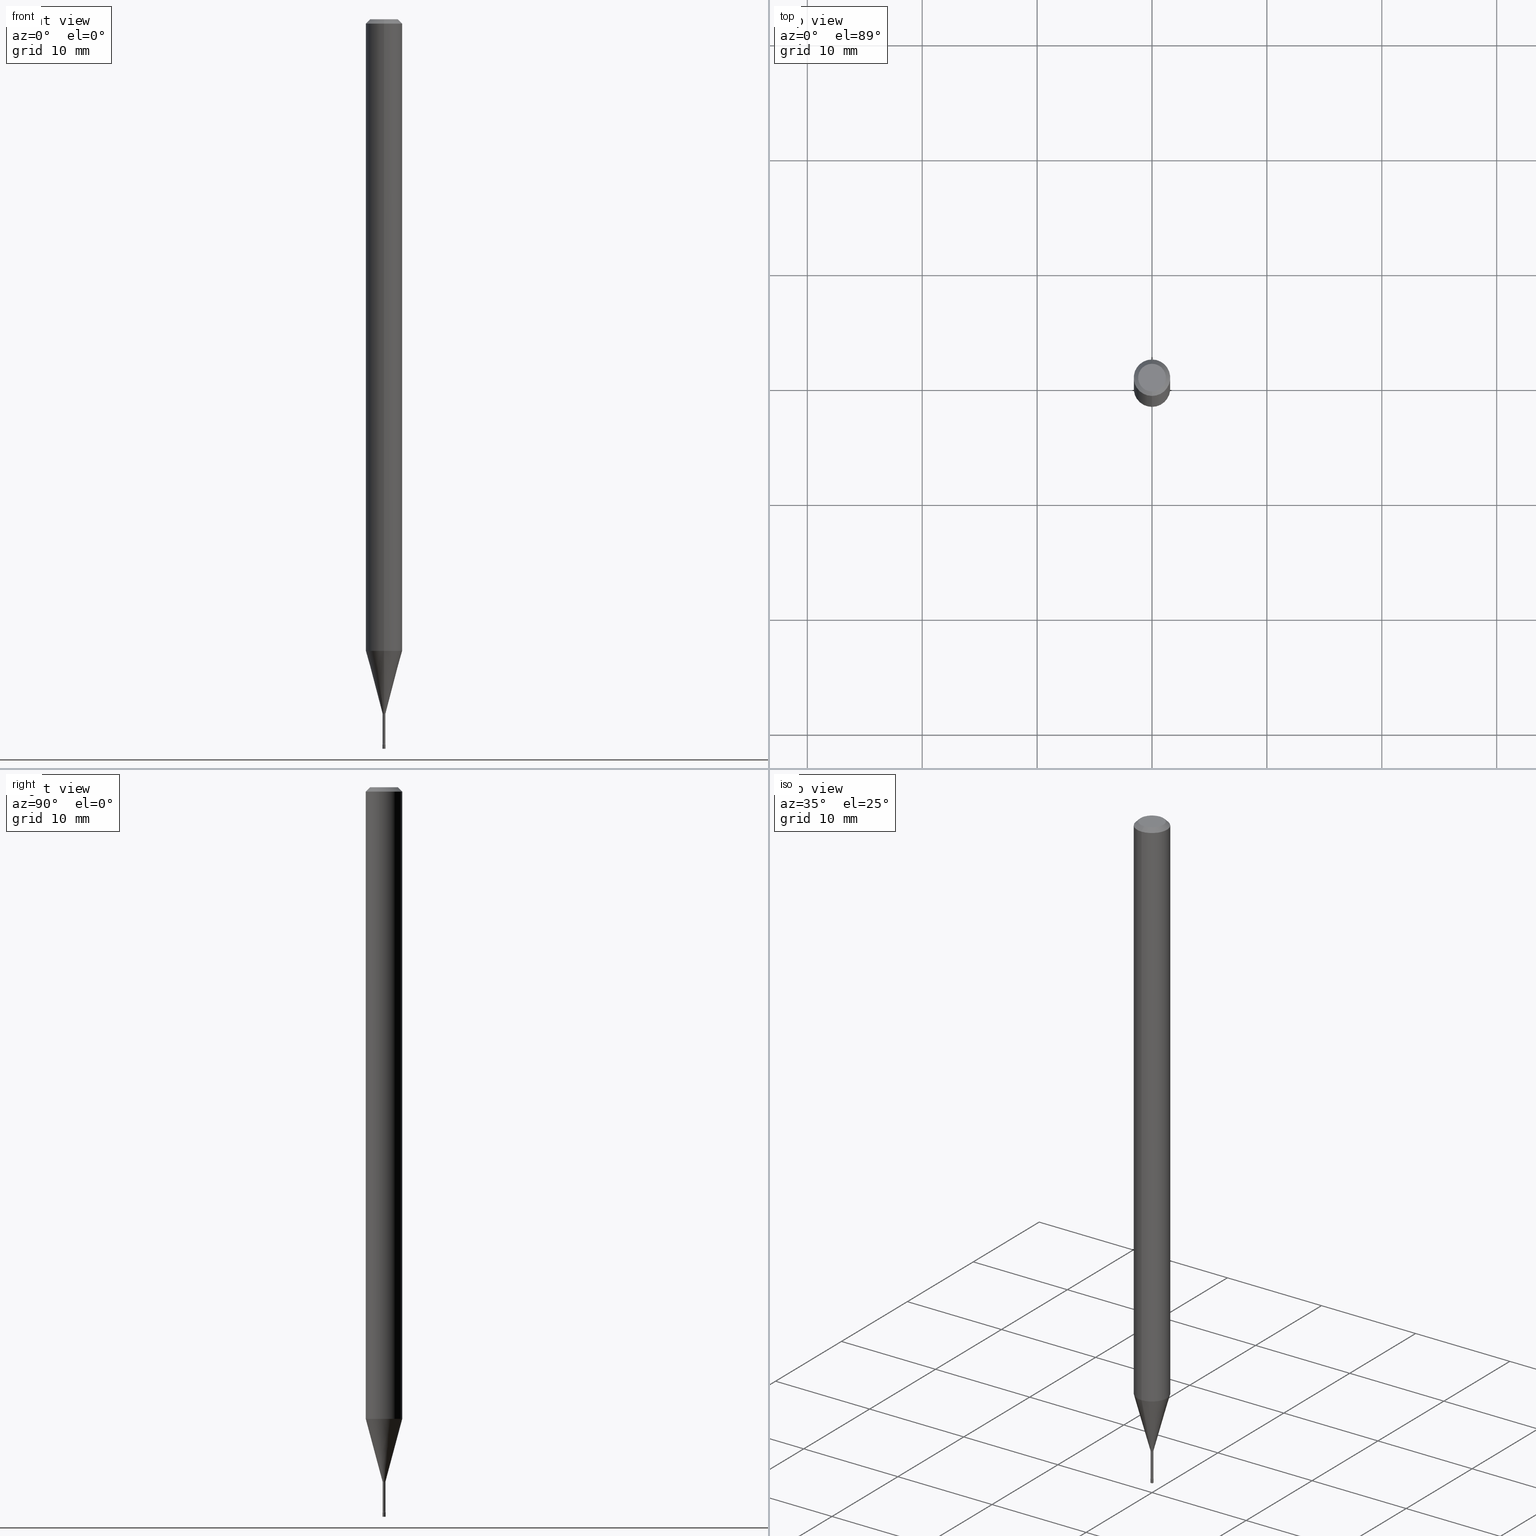
[diagram: canonical four-view strip — front | top / right | iso, engineering-drawing reading convention]
A machine part, canonical four-view strip (front | top / right | iso — engineering-drawing reading convention). The complete STEP part file that produces these views, byte-faithful:
ISO-10303-21;
HEADER;
FILE_DESCRIPTION (( 'STEP AP203' ),
    '1' );
FILE_NAME ('09595.STEP',
    '2024-03-08T23:47:24',
    ( '' ),
    ( '' ),
    'SwSTEP 2.0',
    'SolidWorks 2023',
    '' );
FILE_SCHEMA (( 'CONFIG_CONTROL_DESIGN' ));
ENDSEC;

DATA;
#1 = DIRECTION ( 'NONE',  ( -2.444331714462359119E-29, 3.493109718909404657E-15, 1.000000000000000000 ) ) ;
#2 = AXIS2_PLACEMENT_3D ( 'NONE', #79, #193, #4 ) ;
#3 = AXIS2_PLACEMENT_3D ( 'NONE', #431, #158, #123 ) ;
#4 = DIRECTION ( 'NONE',  ( -6.982962677686267499E-15, -1.000000000000000000, 0.000000000000000000 ) ) ;
#5 = CARTESIAN_POINT ( 'NONE',  ( 5.822064353521460199E-29, -8.320889032514865276E-15, -2.381974787463811527 ) ) ;
#6 = DIRECTION ( 'NONE',  ( -6.982962677686265922E-15, -1.000000000000000000, 3.483106191921935554E-15 ) ) ;
#7 = CYLINDRICAL_SURFACE ( 'NONE', #157, 0.06250000000000000000 ) ;
#8 = DIRECTION ( 'NONE',  ( -6.982962677686265922E-15, -1.000000000000000000, 0.000000000000000000 ) ) ;
#9 = VECTOR ( 'NONE', #86, 39.37007874015748143 ) ;
#10 = DESIGN_CONTEXT ( 'detailed design', #375, 'design' ) ;
#11 = EDGE_CURVE ( 'NONE', #381, #107, #188, .T. ) ;
#12 = ORIENTED_EDGE ( 'NONE', *, *, #517, .T. ) ;
#13 = ORIENTED_EDGE ( 'NONE', *, *, #239, .F. ) ;
#14 = DIRECTION ( 'NONE',  ( -6.982962677686265922E-15, -1.000000000000000000, 3.493109718909404657E-15 ) ) ;
#15 = FACE_OUTER_BOUND ( 'NONE', #104, .T. ) ;
#16 = CIRCLE ( 'NONE', #288, 0.04749999999999999362 ) ;
#17 = CC_DESIGN_SECURITY_CLASSIFICATION ( #126, ( #241 ) ) ;
#18 = VERTEX_POINT ( 'NONE', #177 ) ;
#19 = APPROVAL_STATUS ( 'not_yet_approved' ) ;
#20 = DIRECTION ( 'NONE',  ( 1.000000000000000000, -6.982962677686336130E-15, 0.000000000000000000 ) ) ;
#21 = DIMENSIONAL_EXPONENTS ( 1.000000000000000000, 0.000000000000000000, 0.000000000000000000, 0.000000000000000000, 0.000000000000000000, 0.000000000000000000, 0.000000000000000000 ) ;
#22 = ORIENTED_EDGE ( 'NONE', *, *, #255, .F. ) ;
#23 = ORIENTED_EDGE ( 'NONE', *, *, #429, .T. ) ;
#24 = DATE_TIME_ROLE ( 'classification_date' ) ;
#25 = CARTESIAN_POINT ( 'NONE',  ( -3.281992458506721643E-17, -0.004700000000008319051, -2.381974787463811527 ) ) ;
#26 = AXIS2_PLACEMENT_3D ( 'NONE', #322, #434, #80 ) ;
#27 = ORIENTED_EDGE ( 'NONE', *, *, #276, .F. ) ;
#28 = PERSON_AND_ORGANIZATION ( #435, #137 ) ;
#29 = ORIENTED_EDGE ( 'NONE', *, *, #164, .F. ) ;
#30 = VERTEX_POINT ( 'NONE', #274 ) ;
#31 = CARTESIAN_POINT ( 'NONE',  ( 0.000000000000000000, 0.000000000000000000, 0.000000000000000000 ) ) ;
#32 = APPROVAL ( #19, 'UNSPECIFIED' ) ;
#33 = AXIS2_PLACEMENT_3D ( 'NONE', #404, #256, #212 ) ;
#34 = ORIENTED_EDGE ( 'NONE', *, *, #486, .T. ) ;
#35 = EDGE_CURVE ( 'NONE', #297, #386, #118, .T. ) ;
#36 = CARTESIAN_POINT ( 'NONE',  ( 6.066709664809331474E-29, -8.670177699308193072E-15, -2.482015037688680259 ) ) ;
#37 = DIRECTION ( 'NONE',  ( -2.445468806185136597E-29, 3.491481338843145583E-15, 1.000000000000000000 ) ) ;
#38 = EDGE_CURVE ( 'NONE', #143, #151, #432, .T. ) ;
#39 = DIRECTION ( 'NONE',  ( -6.982962677686265922E-15, -1.000000000000000000, 3.493109718909404657E-15 ) ) ;
#40 = CIRCLE ( 'NONE', #349, 0.005000000000000001839 ) ;
#41 = AXIS2_PLACEMENT_3D ( 'NONE', #5, #109, #233 ) ;
#42 = FACE_OUTER_BOUND ( 'NONE', #48, .T. ) ;
#43 = APPROVAL ( #340, 'UNSPECIFIED' ) ;
#44 = ADVANCED_FACE ( 'NONE', ( #317 ), #465, .F. ) ;
#45 = AXIS2_PLACEMENT_3D ( 'NONE', #450, #367, #506 ) ;
#46 = LOCAL_TIME ( 18, 47, 24.00000000000000000, #128 ) ;
#47 = EDGE_LOOP ( 'NONE', ( #253, #346, #440, #60 ) ) ;
#48 = EDGE_LOOP ( 'NONE', ( #505, #34, #510, #69 ) ) ;
#49 = COORDINATED_UNIVERSAL_TIME_OFFSET ( 5, 0, .BEHIND. ) ;
#50 = DIRECTION ( 'NONE',  ( 2.444331714462359119E-29, -3.493109718909404263E-15, -1.000000000000000000 ) ) ;
#51 = EDGE_CURVE ( 'NONE', #412, #399, #246, .T. ) ;
#52 = EDGE_LOOP ( 'NONE', ( #343, #338 ) ) ;
#53 = PERSON_AND_ORGANIZATION_ROLE ( 'creator' ) ;
#54 = CIRCLE ( 'NONE', #66, 0.06250000000000000000 ) ;
#55 = DIRECTION ( 'NONE',  ( -2.445468806185136597E-29, 3.491481338843145583E-15, 1.000000000000000000 ) ) ;
#56 = ORIENTED_EDGE ( 'NONE', *, *, #411, .F. ) ;
#57 = CALENDAR_DATE ( 2024, 8, 3 ) ;
#58 = CARTESIAN_POINT ( 'NONE',  ( -3.491481338837061715E-17, -0.005000000000008683262, -2.484999999999999876 ) ) ;
#59 = DIRECTION ( 'NONE',  ( -2.444331714462359119E-29, 3.493109718909404263E-15, 1.000000000000000000 ) ) ;
#60 = ORIENTED_EDGE ( 'NONE', *, *, #198, .T. ) ;
#61 = APPROVAL_STATUS ( 'not_yet_approved' ) ;
#62 = EDGE_LOOP ( 'NONE', ( #227, #295, #187, #409 ) ) ;
#63 = ADVANCED_FACE ( 'NONE', ( #191 ), #169, .T. ) ;
#64 = APPLICATION_PROTOCOL_DEFINITION ( 'international standard', 'config_control_design', 1994, #375 ) ;
#65 = DIRECTION ( 'NONE',  ( 6.982962677686265922E-15, 1.000000000000000000, -3.483106191921935554E-15 ) ) ;
#66 = AXIS2_PLACEMENT_3D ( 'NONE', #439, #162, #6 ) ;
#67 = ORIENTED_EDGE ( 'NONE', *, *, #517, .F. ) ;
#68 = CARTESIAN_POINT ( 'NONE',  ( 3.666497571693545913E-31, -5.239664578364117759E-17, -0.01500000000000003067 ) ) ;
#69 = ORIENTED_EDGE ( 'NONE', *, *, #266, .F. ) ;
#70 = CARTESIAN_POINT ( 'NONE',  ( 0.004999999999999997502, -8.711245940413648329E-15, -2.484999999999999876 ) ) ;
#71 = EDGE_CURVE ( 'NONE', #107, #72, #111, .T. ) ;
#72 = VERTEX_POINT ( 'NONE', #519 ) ;
#73 = FACE_OUTER_BOUND ( 'NONE', #311, .T. ) ;
#74 = AXIS2_PLACEMENT_3D ( 'NONE', #89, #286, #243 ) ;
#75 = CARTESIAN_POINT ( 'NONE',  ( -3.281992458506486833E-17, -0.004700000000008682476, -2.482015037688680259 ) ) ;
#76 = CC_DESIGN_DATE_AND_TIME_ASSIGNMENT ( #378, #24, ( #126 ) ) ;
#77 = CARTESIAN_POINT ( 'NONE',  ( -0.004999999999999997502, -8.666990100278535771E-15, -2.500000000000000000 ) ) ;
#78 = DIRECTION ( 'NONE',  ( -6.982962677686265922E-15, -1.000000000000000000, 3.493109718909404657E-15 ) ) ;
#79 = CARTESIAN_POINT ( 'NONE',  ( 5.812846922043767073E-29, -8.306938030458705660E-15, -2.378092501787273605 ) ) ;
#80 = DIRECTION ( 'NONE',  ( -6.982962677686265922E-15, -1.000000000000000000, 0.000000000000000000 ) ) ;
#81 = CARTESIAN_POINT ( 'NONE',  ( 3.491481338849208940E-17, 0.004999999999991321283, -2.484999999999999876 ) ) ;
#82 = CIRCLE ( 'NONE', #207, 0.01500000000000000638 ) ;
#83 = CIRCLE ( 'NONE', #166, 0.005211112605663988095 ) ;
#84 = DIRECTION ( 'NONE',  ( -1.807323732225325801E-15, -0.2588190451025175753, 0.9659258262890690894 ) ) ;
#85 = ADVANCED_FACE ( 'NONE', ( #281 ), #153, .T. ) ;
#86 = DIRECTION ( 'NONE',  ( -4.851104656540964275E-15, -0.7071067811865500152, -0.7071067811865450192 ) ) ;
#87 = EDGE_CURVE ( 'NONE', #30, #399, #419, .T. ) ;
#88 = CIRCLE ( 'NONE', #380, 0.01500000000000002720 ) ;
#89 = CARTESIAN_POINT ( 'NONE',  ( 0.000000000000000000, 0.000000000000000000, 0.000000000000000000 ) ) ;
#90 = LOCAL_TIME ( 18, 47, 24.00000000000000000, #172 ) ;
#91 = FACE_OUTER_BOUND ( 'NONE', #250, .T. ) ;
#92 = ADVANCED_FACE ( 'NONE', ( #428 ), #359, .F. ) ;
#93 = CARTESIAN_POINT ( 'NONE',  ( 3.702718207188246555E-17, 0.005211112605655682239, -2.378092501787273605 ) ) ;
#94 = ORIENTED_EDGE ( 'NONE', *, *, #266, .T. ) ;
#95 = COORDINATED_UNIVERSAL_TIME_OFFSET ( 5, 0, .BEHIND. ) ;
#96 = DIRECTION ( 'NONE',  ( -2.444331714462359119E-29, 3.493109718909404657E-15, 1.000000000000000000 ) ) ;
#97 = AXIS2_PLACEMENT_3D ( 'NONE', #391, #480, #430 ) ;
#98 = APPROVAL_ROLE ( '' ) ;
#99 = CARTESIAN_POINT ( 'NONE',  ( 2.405581959609991187E-16, 0.005211112605655682239, -2.378092501787273605 ) ) ;
#100 = DIRECTION ( 'NONE',  ( 1.000000000000000000, -6.982962677686336130E-15, 0.000000000000000000 ) ) ;
#101 = EDGE_LOOP ( 'NONE', ( #384, #277, #498, #94 ) ) ;
#102 = AXIS2_PLACEMENT_3D ( 'NONE', #379, #50, #180 ) ;
#103 = CIRCLE ( 'NONE', #97, 0.06250000000000000000 ) ;
#104 = EDGE_LOOP ( 'NONE', ( #248, #516, #366, #258 ) ) ;
#105 = ORIENTED_EDGE ( 'NONE', *, *, #147, .T. ) ;
#106 = DIRECTION ( 'NONE',  ( -6.982962677686265922E-15, -1.000000000000000000, 0.000000000000000000 ) ) ;
#107 = VERTEX_POINT ( 'NONE', #396 ) ;
#108 = CIRCLE ( 'NONE', #240, 0.005000000000000001839 ) ;
#109 = DIRECTION ( 'NONE',  ( -2.444331714462359119E-29, 3.493109718909404657E-15, 1.000000000000000000 ) ) ;
#110 = AXIS2_PLACEMENT_3D ( 'NONE', #307, #383, #341 ) ;
#111 = LINE ( 'NONE', #234, #436 ) ;
#112 = MANIFOLD_SOLID_BREP ( 'Body-Move/Copy2[1]', #503 ) ;
#113 = CARTESIAN_POINT ( 'NONE',  ( 4.440892098501153712E-16, 0.06249999999999242967, -2.164287463322519756 ) ) ;
#114 = DIRECTION ( 'NONE',  ( -2.444331714462359119E-29, 3.493109718909404657E-15, 1.000000000000000000 ) ) ;
#115 = CYLINDRICAL_SURFACE ( 'NONE', #159, 0.004999999999999997502 ) ;
#116 = DIRECTION ( 'NONE',  ( -6.982962677686265922E-15, -1.000000000000000000, 0.000000000000000000 ) ) ;
#117 = CARTESIAN_POINT ( 'NONE',  ( 0.000000000000000000, 0.000000000000000000, 0.000000000000000000 ) ) ;
#118 = CIRCLE ( 'NONE', #441, 0.004999999999999997502 ) ;
#119 = ADVANCED_FACE ( 'NONE', ( #42 ), #7, .T. ) ;
#120 =( NAMED_UNIT ( * ) PLANE_ANGLE_UNIT ( ) SI_UNIT ( $, .RADIAN. ) );
#121 = DIRECTION ( 'NONE',  ( -1.000000000000000000, 6.982962677686265922E-15, -4.883557194083112340E-29 ) ) ;
#122 = ORIENTED_EDGE ( 'NONE', *, *, #167, .T. ) ;
#123 = DIRECTION ( 'NONE',  ( 1.000000000000000000, -6.982962677686266711E-15, 4.876176775795936914E-29 ) ) ;
#124 = EDGE_CURVE ( 'NONE', #18, #143, #292, .T. ) ;
#125 = AXIS2_PLACEMENT_3D ( 'NONE', #509, #55, #20 ) ;
#126 = SECURITY_CLASSIFICATION ( '', '', #267 ) ;
#127 = ORIENTED_EDGE ( 'NONE', *, *, #205, .T. ) ;
#128 = COORDINATED_UNIVERSAL_TIME_OFFSET ( 5, 0, .BEHIND. ) ;
#129 = ADVANCED_BREP_SHAPE_REPRESENTATION ( '09595', ( #112, #296, #74 ), #479 ) ;
#130 = ORIENTED_EDGE ( 'NONE', *, *, #87, .T. ) ;
#131 = DIRECTION ( 'NONE',  ( 1.839019923739595977E-15, 0.2588190451025243477, 0.9659258262890673130 ) ) ;
#132 = FACE_OUTER_BOUND ( 'NONE', #390, .T. ) ;
#133 = DIRECTION ( 'NONE',  ( 4.937700262164548042E-15, 0.7071067811865451302, -0.7071067811865499042 ) ) ;
#134 = EDGE_LOOP ( 'NONE', ( #329, #314, #130, #502 ) ) ;
#135 = PERSON_AND_ORGANIZATION ( #435, #137 ) ;
#136 = VECTOR ( 'NONE', #131, 39.37007874015748143 ) ;
#137 = ORGANIZATION ( 'UNSPECIFIED', 'UNSPECIFIED', '' ) ;
#138 = EDGE_CURVE ( 'NONE', #412, #262, #278, .T. ) ;
#139 = ORIENTED_EDGE ( 'NONE', *, *, #175, .F. ) ;
#140 = APPROVAL_ROLE ( '' ) ;
#141 = CARTESIAN_POINT ( 'NONE',  ( 6.074164310438962886E-29, -8.680377651489870003E-15, -2.484999999999999876 ) ) ;
#142 = PRODUCT_DEFINITION ( 'UNKNOWN', '', #241, #10 ) ;
#143 = VERTEX_POINT ( 'NONE', #244 ) ;
#144 = PERSON_AND_ORGANIZATION ( #435, #137 ) ;
#145 = DIRECTION ( 'NONE',  ( 7.105427357601000281E-15, 1.000000000000000000, 0.000000000000000000 ) ) ;
#146 = ORIENTED_EDGE ( 'NONE', *, *, #51, .T. ) ;
#147 = EDGE_CURVE ( 'NONE', #456, #370, #242, .T. ) ;
#148 = DIRECTION ( 'NONE',  ( -2.445468806185136597E-29, 3.491481338843145583E-15, 1.000000000000000000 ) ) ;
#149 = AXIS2_PLACEMENT_3D ( 'NONE', #482, #360, #357 ) ;
#150 = AXIS2_PLACEMENT_3D ( 'NONE', #511, #154, #427 ) ;
#151 = VERTEX_POINT ( 'NONE', #289 ) ;
#152 = ORIENTED_EDGE ( 'NONE', *, *, #429, .F. ) ;
#153 = CYLINDRICAL_SURFACE ( 'NONE', #387, 0.004700000000000006256 ) ;
#154 = DIRECTION ( 'NONE',  ( 2.438088387897960049E-29, -3.491481338843145188E-15, -1.000000000000000000 ) ) ;
#155 = PRODUCT ( '09595', '09595', '', ( #362 ) ) ;
#156 = AXIS2_PLACEMENT_3D ( 'NONE', #81, #392, #321 ) ;
#157 = AXIS2_PLACEMENT_3D ( 'NONE', #163, #200, #78 ) ;
#158 = DIRECTION ( 'NONE',  ( -2.445468806185136597E-29, 3.491481338843145583E-15, 1.000000000000000000 ) ) ;
#159 = AXIS2_PLACEMENT_3D ( 'NONE', #31, #37, #226 ) ;
#160 = DIRECTION ( 'NONE',  ( -2.444331714462359119E-29, 3.493109718909404657E-15, 1.000000000000000000 ) ) ;
#161 = CARTESIAN_POINT ( 'NONE',  ( 5.812846922043767073E-29, -8.306938030458705660E-15, -2.378092501787273605 ) ) ;
#162 = DIRECTION ( 'NONE',  ( -2.444331714462359119E-29, 3.493109718909404657E-15, 1.000000000000000000 ) ) ;
#163 = CARTESIAN_POINT ( 'NONE',  ( 0.000000000000000000, 0.000000000000000000, 0.000000000000000000 ) ) ;
#164 = EDGE_CURVE ( 'NONE', #151, #370, #54, .T. ) ;
#165 = TOROIDAL_SURFACE ( 'NONE', #453, 0.01970000000000000917, 0.01500000000000002720 ) ;
#166 = AXIS2_PLACEMENT_3D ( 'NONE', #161, #186, #273 ) ;
#167 = EDGE_CURVE ( 'NONE', #297, #208, #197, .T. ) ;
#168 = ORIENTED_EDGE ( 'NONE', *, *, #164, .T. ) ;
#169 = CONICAL_SURFACE ( 'NONE', #270, 0.005211112605663988095, 0.2617993877991496299 ) ;
#170 = ORIENTED_EDGE ( 'NONE', *, *, #175, .T. ) ;
#171 = CC_DESIGN_APPROVAL ( #43, ( #126 ) ) ;
#172 = COORDINATED_UNIVERSAL_TIME_OFFSET ( 5, 0, .BEHIND. ) ;
#173 = CARTESIAN_POINT ( 'NONE',  ( 0.004999999999999997502, -3.491481338843131630E-17, 2.438088387897967108E-31 ) ) ;
#174 = EDGE_LOOP ( 'NONE', ( #352, #139 ) ) ;
#175 = EDGE_CURVE ( 'NONE', #265, #223, #40, .T. ) ;
#176 = DIRECTION ( 'NONE',  ( 2.444331714462359119E-29, -3.493109718909404657E-15, -1.000000000000000000 ) ) ;
#177 = CARTESIAN_POINT ( 'NONE',  ( 3.840629472727447874E-16, 0.04749999999999999362, -1.947592745229183872E-16 ) ) ;
#178 = DATE_AND_TIME ( #183, #90 ) ;
#179 = ADVANCED_FACE ( 'NONE', ( #184 ), #403, .F. ) ;
#180 = DIRECTION ( 'NONE',  ( 6.982962677686265922E-15, 1.000000000000000000, -3.493109718909404263E-15 ) ) ;
#181 = CARTESIAN_POINT ( 'NONE',  ( 5.822336516047531297E-29, -8.320499280287002924E-15, -2.381974787463811527 ) ) ;
#182 = AXIS2_PLACEMENT_3D ( 'NONE', #36, #284, #515 ) ;
#183 = CALENDAR_DATE ( 2024, 8, 3 ) ;
#184 = FACE_OUTER_BOUND ( 'NONE', #52, .T. ) ;
#185 = EDGE_CURVE ( 'NONE', #421, #208, #257, .T. ) ;
#186 = DIRECTION ( 'NONE',  ( -2.444331714462359119E-29, 3.493109718909404657E-15, 1.000000000000000000 ) ) ;
#187 = ORIENTED_EDGE ( 'NONE', *, *, #71, .T. ) ;
#188 = CIRCLE ( 'NONE', #488, 0.005211112605663988095 ) ;
#189 = TOROIDAL_SURFACE ( 'NONE', #41, 0.01970000000000000917, 0.01500000000000002720 ) ;
#190 = ORIENTED_EDGE ( 'NONE', *, *, #71, .F. ) ;
#191 = FACE_OUTER_BOUND ( 'NONE', #62, .T. ) ;
#192 = ADVANCED_FACE ( 'NONE', ( #344 ), #318, .T. ) ;
#193 = DIRECTION ( 'NONE',  ( -2.444331714462359119E-29, 3.493109718909404657E-15, 1.000000000000000000 ) ) ;
#194 = APPROVAL_PERSON_ORGANIZATION ( #251, #43, #140 ) ;
#195 = DIRECTION ( 'NONE',  ( -2.444331714462359119E-29, 3.493109718909404657E-15, 1.000000000000000000 ) ) ;
#196 = CARTESIAN_POINT ( 'NONE',  ( 6.066709664809331474E-29, -8.670177699308193072E-15, -2.482015037688680259 ) ) ;
#197 = LINE ( 'NONE', #433, #247 ) ;
#198 = EDGE_CURVE ( 'NONE', #223, #265, #108, .T. ) ;
#199 = CARTESIAN_POINT ( 'NONE',  ( 4.440892098500625669E-16, 0.06250000000000000000, -2.183193574318377911E-16 ) ) ;
#200 = DIRECTION ( 'NONE',  ( -2.444331714462359119E-29, 3.493109718909404657E-15, 1.000000000000000000 ) ) ;
#201 = AXIS2_PLACEMENT_3D ( 'NONE', #302, #261, #410 ) ;
#202 = DIRECTION ( 'NONE',  ( 1.000000000000000000, -7.105427357601001070E-15, 4.926335450446441508E-29 ) ) ;
#203 = VECTOR ( 'NONE', #133, 39.37007874015748143 ) ;
#204 = ORIENTED_EDGE ( 'NONE', *, *, #35, .T. ) ;
#205 = EDGE_CURVE ( 'NONE', #262, #265, #82, .T. ) ;
#206 = CARTESIAN_POINT ( 'NONE',  ( 6.113672015462842613E-29, -8.728703347107864943E-15, -2.500000000000000000 ) ) ;
#207 = AXIS2_PLACEMENT_3D ( 'NONE', #268, #372, #145 ) ;
#208 = VERTEX_POINT ( 'NONE', #445 ) ;
#209 = CIRCLE ( 'NONE', #33, 0.06250000000000000000 ) ;
#210 = APPROVAL_DATE_TIME ( #263, #382 ) ;
#211 = ADVANCED_FACE ( 'NONE', ( #374 ), #165, .F. ) ;
#212 = DIRECTION ( 'NONE',  ( -6.982962677686265922E-15, -1.000000000000000000, 3.483106191921935554E-15 ) ) ;
#213 = ORIENTED_EDGE ( 'NONE', *, *, #185, .T. ) ;
#214 = PLANE ( 'NONE',  #222 ) ;
#215 = ORIENTED_EDGE ( 'NONE', *, *, #87, .F. ) ;
#216 = EDGE_CURVE ( 'NONE', #381, #456, #500, .T. ) ;
#217 = APPROVAL_ROLE ( '' ) ;
#218 = DIRECTION ( 'NONE',  ( -2.438088387897960049E-29, 3.491481338843145188E-15, 1.000000000000000000 ) ) ;
#219 = APPROVAL_DATE_TIME ( #178, #32 ) ;
#220 = CIRCLE ( 'NONE', #313, 0.004699999999999999317 ) ;
#221 = EDGE_CURVE ( 'NONE', #107, #399, #425, .T. ) ;
#222 = AXIS2_PLACEMENT_3D ( 'NONE', #299, #218, #461 ) ;
#223 = VERTEX_POINT ( 'NONE', #58 ) ;
#224 = FACE_OUTER_BOUND ( 'NONE', #231, .T. ) ;
#225 = ORIENTED_EDGE ( 'NONE', *, *, #416, .F. ) ;
#226 = DIRECTION ( 'NONE',  ( 1.000000000000000000, -6.982962677686266711E-15, 4.876176775795936914E-29 ) ) ;
#227 = ORIENTED_EDGE ( 'NONE', *, *, #216, .F. ) ;
#228 = DIRECTION ( 'NONE',  ( 1.000000000000000000, -6.982962677686336130E-15, 0.000000000000000000 ) ) ;
#229 = AXIS2_PLACEMENT_3D ( 'NONE', #484, #324, #116 ) ;
#230 = TOROIDAL_SURFACE ( 'NONE', #182, 0.01970000000000001958, 0.01500000000000000638 ) ;
#231 = EDGE_LOOP ( 'NONE', ( #336, #105, #29, #365 ) ) ;
#232 = EDGE_CURVE ( 'NONE', #381, #30, #88, .T. ) ;
#233 = DIRECTION ( 'NONE',  ( -6.982962677686265922E-15, -1.000000000000000000, 3.493109718909404657E-15 ) ) ;
#234 = CARTESIAN_POINT ( 'NONE',  ( -3.638900483451393504E-17, -0.005211112605672294819, -2.378092501787273605 ) ) ;
#235 = CC_DESIGN_PERSON_AND_ORGANIZATION_ASSIGNMENT ( #135, #305, ( #155 ) ) ;
#236 = LENGTH_MEASURE_WITH_UNIT ( LENGTH_MEASURE( 0.02539999999999999897 ), #518 );
#237 = CARTESIAN_POINT ( 'NONE',  ( 7.048612517077012088E-46, -1.007292780376324929E-31, -2.883656287472169979E-17 ) ) ;
#238 = CARTESIAN_POINT ( 'NONE',  ( 6.076989983370064174E-29, -8.676331127025216680E-15, -2.484999999999999876 ) ) ;
#239 = EDGE_CURVE ( 'NONE', #412, #223, #442, .T. ) ;
#240 = AXIS2_PLACEMENT_3D ( 'NONE', #141, #309, #460 ) ;
#241 = PRODUCT_DEFINITION_FORMATION_WITH_SPECIFIED_SOURCE ( 'ANY', '', #155, .NOT_KNOWN. ) ;
#242 = LINE ( 'NONE', #199, #493 ) ;
#243 = DIRECTION ( 'NONE',  ( 1.000000000000000000, 0.000000000000000000, 0.000000000000000000 ) ) ;
#244 = CARTESIAN_POINT ( 'NONE',  ( -3.773273898774340269E-16, -0.04749999999999999362, 1.370861487734750493E-16 ) ) ;
#245 = CC_DESIGN_PERSON_AND_ORGANIZATION_ASSIGNMENT ( #28, #53, ( #142 ) ) ;
#246 = LINE ( 'NONE', #477, #363 ) ;
#247 = VECTOR ( 'NONE', #358, 39.37007874015748143 ) ;
#248 = ORIENTED_EDGE ( 'NONE', *, *, #232, .F. ) ;
#249 = LINE ( 'NONE', #173, #279 ) ;
#250 = EDGE_LOOP ( 'NONE', ( #272, #204, #497, #67 ) ) ;
#251 = PERSON_AND_ORGANIZATION ( #435, #137 ) ;
#252 = CARTESIAN_POINT ( 'NONE',  ( 5.822064353521460199E-29, -8.320889032514865276E-15, -2.381974787463811527 ) ) ;
#253 = ORIENTED_EDGE ( 'NONE', *, *, #205, .F. ) ;
#254 = FACE_OUTER_BOUND ( 'NONE', #376, .T. ) ;
#255 = EDGE_CURVE ( 'NONE', #386, #421, #249, .T. ) ;
#256 = DIRECTION ( 'NONE',  ( -2.444331714462359119E-29, 3.493109718909404657E-15, 1.000000000000000000 ) ) ;
#257 = CIRCLE ( 'NONE', #125, 0.004999999999999997502 ) ;
#258 = ORIENTED_EDGE ( 'NONE', *, *, #411, .T. ) ;
#259 = AXIS2_PLACEMENT_3D ( 'NONE', #206, #368, #282 ) ;
#260 = CALENDAR_DATE ( 2024, 8, 3 ) ;
#261 = DIRECTION ( 'NONE',  ( -1.000000000000000000, 6.982962677686265922E-15, -4.883557194083112340E-29 ) ) ;
#262 = VERTEX_POINT ( 'NONE', #331 ) ;
#263 = DATE_AND_TIME ( #260, #495 ) ;
#264 = CARTESIAN_POINT ( 'NONE',  ( 4.440892098501159629E-16, 0.06249999999999995837, -0.01500000000000024751 ) ) ;
#265 = VERTEX_POINT ( 'NONE', #496 ) ;
#266 = EDGE_CURVE ( 'NONE', #370, #151, #209, .T. ) ;
#267 = SECURITY_CLASSIFICATION_LEVEL ( 'unclassified' ) ;
#268 = CARTESIAN_POINT ( 'NONE',  ( 1.399769189448004948E-16, 0.01969999999999134943, -2.482015037688680259 ) ) ;
#269 = EDGE_LOOP ( 'NONE', ( #152, #508, #146, #215 ) ) ;
#270 = AXIS2_PLACEMENT_3D ( 'NONE', #397, #323, #353 ) ;
#271 = CIRCLE ( 'NONE', #369, 0.06250000000000000000 ) ;
#272 = ORIENTED_EDGE ( 'NONE', *, *, #167, .F. ) ;
#273 = DIRECTION ( 'NONE',  ( -6.982962677686267499E-15, -1.000000000000000000, 0.000000000000000000 ) ) ;
#274 = CARTESIAN_POINT ( 'NONE',  ( 3.339550858078540920E-17, 0.004699999999991678716, -2.381974787463811527 ) ) ;
#275 = CARTESIAN_POINT ( 'NONE',  ( 3.339550858072474703E-17, 0.004700000000000006256, -1.641761567887422463E-17 ) ) ;
#276 = EDGE_CURVE ( 'NONE', #18, #370, #335, .T. ) ;
#277 = ORIENTED_EDGE ( 'NONE', *, *, #124, .F. ) ;
#278 = CIRCLE ( 'NONE', #229, 0.004700000000000012328 ) ;
#279 = VECTOR ( 'NONE', #401, 39.37007874015748143 ) ;
#280 = EDGE_CURVE ( 'NONE', #72, #151, #303, .T. ) ;
#281 = FACE_OUTER_BOUND ( 'NONE', #269, .T. ) ;
#282 = DIRECTION ( 'NONE',  ( 1.000000000000000000, -6.982962677686336130E-15, 0.000000000000000000 ) ) ;
#283 = EDGE_CURVE ( 'NONE', #386, #297, #426, .T. ) ;
#284 = DIRECTION ( 'NONE',  ( -2.444331714462359119E-29, 3.493109718909404657E-15, 1.000000000000000000 ) ) ;
#285 = CARTESIAN_POINT ( 'NONE',  ( 5.822336516047531297E-29, -8.320499280287002924E-15, -2.381974787463811527 ) ) ;
#286 = DIRECTION ( 'NONE',  ( 0.000000000000000000, 0.000000000000000000, 1.000000000000000000 ) ) ;
#287 = AXIS2_PLACEMENT_3D ( 'NONE', #285, #1, #8 ) ;
#288 = AXIS2_PLACEMENT_3D ( 'NONE', #237, #356, #494 ) ;
#289 = CARTESIAN_POINT ( 'NONE',  ( -4.364351673553912750E-16, -0.06250000000000005551, -0.01499999999999981209 ) ) ;
#290 = DIRECTION ( 'NONE',  ( -6.982962677686265133E-15, -1.000000000000000000, 3.493109718909404657E-15 ) ) ;
#291 = ADVANCED_FACE ( 'NONE', ( #15 ), #189, .F. ) ;
#292 = CIRCLE ( 'NONE', #149, 0.04749999999999999362 ) ;
#293 = AXIS2_PLACEMENT_3D ( 'NONE', #481, #195, #330 ) ;
#294 = ADVANCED_FACE ( 'NONE', ( #91 ), #393, .T. ) ;
#295 = ORIENTED_EDGE ( 'NONE', *, *, #11, .T. ) ;
#296 = MANIFOLD_SOLID_BREP ( 'Body-Move/Copy2[2]', #312 ) ;
#297 = VERTEX_POINT ( 'NONE', #77 ) ;
#298 = UNCERTAINTY_MEASURE_WITH_UNIT (LENGTH_MEASURE( 1.000000000000000082E-05 ), #473, 'distance_accuracy_value', 'NONE');
#299 = CARTESIAN_POINT ( 'NONE',  ( 6.076989983370064174E-29, -8.676331127025216680E-15, -2.484999999999999876 ) ) ;
#300 = SHAPE_DEFINITION_REPRESENTATION ( #476, #129 ) ;
#301 = PERSON_AND_ORGANIZATION ( #435, #137 ) ;
#302 = CARTESIAN_POINT ( 'NONE',  ( -1.375643647503612824E-16, -0.01970000000000832890, -2.381974787463811527 ) ) ;
#303 = LINE ( 'NONE', #455, #489 ) ;
#304 = ORIENTED_EDGE ( 'NONE', *, *, #283, .F. ) ;
#305 = PERSON_AND_ORGANIZATION_ROLE ( 'design_owner' ) ;
#306 = CARTESIAN_POINT ( 'NONE',  ( 6.074164310438962886E-29, -8.680377651489870003E-15, -2.484999999999999876 ) ) ;
#307 = CARTESIAN_POINT ( 'NONE',  ( 0.000000000000000000, 0.000000000000000000, 0.000000000000000000 ) ) ;
#308 = CARTESIAN_POINT ( 'NONE',  ( 6.113672015462842613E-29, -8.728703347107864943E-15, -2.500000000000000000 ) ) ;
#309 = DIRECTION ( 'NONE',  ( -2.444331714462359119E-29, 3.493109718909404657E-15, 1.000000000000000000 ) ) ;
#310 = PERSON_AND_ORGANIZATION_ROLE ( 'classification_officer' ) ;
#311 = EDGE_LOOP ( 'NONE', ( #448, #122, #424, #22 ) ) ;
#312 = CLOSED_SHELL ( 'NONE', ( #211, #325, #491, #361, #377, #457, #63, #119, #192, #179, #92, #44, #85, #291 ) ) ;
#313 = AXIS2_PLACEMENT_3D ( 'NONE', #181, #507, #106 ) ;
#314 = ORIENTED_EDGE ( 'NONE', *, *, #232, .T. ) ;
#315 = FACE_OUTER_BOUND ( 'NONE', #316, .T. ) ;
#316 = EDGE_LOOP ( 'NONE', ( #347, #332, #225, #190 ) ) ;
#317 = FACE_OUTER_BOUND ( 'NONE', #47, .T. ) ;
#318 = CONICAL_SURFACE ( 'NONE', #45, 0.06250000000000000000, 0.7853981633974483900 ) ;
#319 = CONICAL_SURFACE ( 'NONE', #398, 0.06250000000000000000, 0.7853981633974483900 ) ;
#320 = CYLINDRICAL_SURFACE ( 'NONE', #293, 0.004700000000000006256 ) ;
#321 = DIRECTION ( 'NONE',  ( -6.982962677686265922E-15, -1.000000000000000000, 3.493109718909404263E-15 ) ) ;
#322 = CARTESIAN_POINT ( 'NONE',  ( 6.066868072394927886E-29, -8.669950850629620107E-15, -2.482015037688680259 ) ) ;
#323 = DIRECTION ( 'NONE',  ( -2.444331714462359119E-29, 3.493109718909404657E-15, 1.000000000000000000 ) ) ;
#324 = DIRECTION ( 'NONE',  ( -2.444331714462359119E-29, 3.493109718909404657E-15, 1.000000000000000000 ) ) ;
#325 = ADVANCED_FACE ( 'NONE', ( #400 ), #320, .T. ) ;
#326 = ORIENTED_EDGE ( 'NONE', *, *, #138, .T. ) ;
#327 = EDGE_CURVE ( 'NONE', #143, #18, #16, .T. ) ;
#328 = DIRECTION ( 'NONE',  ( -6.982962677686265133E-15, -1.000000000000000000, 0.000000000000000000 ) ) ;
#329 = ORIENTED_EDGE ( 'NONE', *, *, #11, .F. ) ;
#330 = DIRECTION ( 'NONE',  ( -6.982962677686265922E-15, -1.000000000000000000, 3.493109718909404657E-15 ) ) ;
#331 = CARTESIAN_POINT ( 'NONE',  ( 3.446132268442561466E-17, 0.004699999999991343047, -2.482015037688680259 ) ) ;
#332 = ORIENTED_EDGE ( 'NONE', *, *, #216, .T. ) ;
#333 = ORIENTED_EDGE ( 'NONE', *, *, #327, .F. ) ;
#334 = CALENDAR_DATE ( 2024, 8, 3 ) ;
#335 = LINE ( 'NONE', #501, #203 ) ;
#336 = ORIENTED_EDGE ( 'NONE', *, *, #416, .T. ) ;
#337 = CYLINDRICAL_SURFACE ( 'NONE', #110, 0.06250000000000000000 ) ;
#338 = ORIENTED_EDGE ( 'NONE', *, *, #327, .T. ) ;
#339 = APPROVAL_PERSON_ORGANIZATION ( #449, #32, #217 ) ;
#340 = APPROVAL_STATUS ( 'not_yet_approved' ) ;
#341 = DIRECTION ( 'NONE',  ( -6.982962677686265922E-15, -1.000000000000000000, 3.493109718909404657E-15 ) ) ;
#342 = EDGE_CURVE ( 'NONE', #262, #412, #350, .T. ) ;
#343 = ORIENTED_EDGE ( 'NONE', *, *, #124, .T. ) ;
#344 = FACE_OUTER_BOUND ( 'NONE', #101, .T. ) ;
#345 = APPLICATION_CONTEXT ( 'configuration controlled 3d designs of mechanical parts and assemblies' ) ;
#346 = ORIENTED_EDGE ( 'NONE', *, *, #138, .F. ) ;
#347 = ORIENTED_EDGE ( 'NONE', *, *, #463, .T. ) ;
#348 = ADVANCED_FACE ( 'NONE', ( #132 ), #214, .T. ) ;
#349 = AXIS2_PLACEMENT_3D ( 'NONE', #306, #406, #418 ) ;
#350 = CIRCLE ( 'NONE', #26, 0.004700000000000012328 ) ;
#351 = FACE_OUTER_BOUND ( 'NONE', #492, .T. ) ;
#352 = ORIENTED_EDGE ( 'NONE', *, *, #198, .F. ) ;
#353 = DIRECTION ( 'NONE',  ( -6.982962677686267499E-15, -1.000000000000000000, 0.000000000000000000 ) ) ;
#354 = FACE_OUTER_BOUND ( 'NONE', #467, .T. ) ;
#355 = AXIS2_PLACEMENT_3D ( 'NONE', #238, #148, #228 ) ;
#356 = DIRECTION ( 'NONE',  ( -2.444331714462359119E-29, 3.493109718909404657E-15, 1.000000000000000000 ) ) ;
#357 = DIRECTION ( 'NONE',  ( -6.982962677686266711E-15, -1.000000000000000000, 3.493109718909405052E-15 ) ) ;
#358 = DIRECTION ( 'NONE',  ( -2.445468806185136877E-29, 3.491481338843145188E-15, 1.000000000000000000 ) ) ;
#359 = PLANE ( 'NONE',  #156 ) ;
#360 = DIRECTION ( 'NONE',  ( -2.444331714462359119E-29, 3.493109718909404657E-15, 1.000000000000000000 ) ) ;
#361 = ADVANCED_FACE ( 'NONE', ( #254 ), #319, .T. ) ;
#362 = MECHANICAL_CONTEXT ( 'NONE', #345, 'mechanical' ) ;
#363 = VECTOR ( 'NONE', #394, 39.37007874015748143 ) ;
#364 = DIRECTION ( 'NONE',  ( 7.105427357601001859E-15, 1.000000000000000000, 0.000000000000000000 ) ) ;
#365 = ORIENTED_EDGE ( 'NONE', *, *, #280, .F. ) ;
#366 = ORIENTED_EDGE ( 'NONE', *, *, #221, .T. ) ;
#367 = DIRECTION ( 'NONE',  ( 2.444331714462359119E-29, -3.493109718909404657E-15, -1.000000000000000000 ) ) ;
#368 = DIRECTION ( 'NONE',  ( -2.445468806185136597E-29, 3.491481338843145583E-15, 1.000000000000000000 ) ) ;
#369 = AXIS2_PLACEMENT_3D ( 'NONE', #423, #470, #385 ) ;
#370 = VERTEX_POINT ( 'NONE', #264 ) ;
#371 = DATE_TIME_ROLE ( 'creation_date' ) ;
#372 = DIRECTION ( 'NONE',  ( 1.000000000000000000, -7.105427357601001070E-15, 4.926335450446441508E-29 ) ) ;
#373 = PERSON_AND_ORGANIZATION ( #435, #137 ) ;
#374 = FACE_OUTER_BOUND ( 'NONE', #134, .T. ) ;
#375 = APPLICATION_CONTEXT ( 'configuration controlled 3d designs of mechanical parts and assemblies' ) ;
#376 = EDGE_LOOP ( 'NONE', ( #333, #444, #168, #27 ) ) ;
#377 = ADVANCED_FACE ( 'NONE', ( #224 ), #337, .T. ) ;
#378 = DATE_AND_TIME ( #57, #420 ) ;
#379 = CARTESIAN_POINT ( 'NONE',  ( 3.316907271900976096E-16, 0.04749999999999999362, -1.803409930855575528E-16 ) ) ;
#380 = AXIS2_PLACEMENT_3D ( 'NONE', #438, #202, #364 ) ;
#381 = VERTEX_POINT ( 'NONE', #99 ) ;
#382 = APPROVAL ( #61, 'UNSPECIFIED' ) ;
#383 = DIRECTION ( 'NONE',  ( -2.444331714462359119E-29, 3.493109718909404657E-15, 1.000000000000000000 ) ) ;
#384 = ORIENTED_EDGE ( 'NONE', *, *, #38, .F. ) ;
#385 = DIRECTION ( 'NONE',  ( -6.982962677686265922E-15, -1.000000000000000000, 4.370956789862821150E-15 ) ) ;
#386 = VERTEX_POINT ( 'NONE', #414 ) ;
#387 = AXIS2_PLACEMENT_3D ( 'NONE', #117, #114, #39 ) ;
#388 = CONICAL_SURFACE ( 'NONE', #2, 0.005211112605663988095, 0.2617993877991496299 ) ;
#389 = LINE ( 'NONE', #275, #454 ) ;
#390 = EDGE_LOOP ( 'NONE', ( #213, #12 ) ) ;
#391 = CARTESIAN_POINT ( 'NONE',  ( 5.290236485812523479E-29, -7.560093572645674107E-15, -2.164287463322519312 ) ) ;
#392 = DIRECTION ( 'NONE',  ( -2.444331714462359119E-29, 3.493109718909404263E-15, 1.000000000000000000 ) ) ;
#393 = CYLINDRICAL_SURFACE ( 'NONE', #3, 0.004999999999999997502 ) ;
#394 = DIRECTION ( 'NONE',  ( -2.444331714462359119E-29, 3.493109718909404263E-15, 1.000000000000000000 ) ) ;
#395 = LOCAL_TIME ( 18, 47, 24.00000000000000000, #49 ) ;
#396 = CARTESIAN_POINT ( 'NONE',  ( -3.638900483451393504E-17, -0.005211112605672294819, -2.378092501787273605 ) ) ;
#397 = CARTESIAN_POINT ( 'NONE',  ( 5.812846922043767073E-29, -8.306938030458705660E-15, -2.378092501787273605 ) ) ;
#398 = AXIS2_PLACEMENT_3D ( 'NONE', #68, #176, #65 ) ;
#399 = VERTEX_POINT ( 'NONE', #25 ) ;
#400 = FACE_OUTER_BOUND ( 'NONE', #446, .T. ) ;
#401 = DIRECTION ( 'NONE',  ( -2.445468806185136877E-29, 3.491481338843145188E-15, 1.000000000000000000 ) ) ;
#402 = PERSON_AND_ORGANIZATION_ROLE ( 'creator' ) ;
#403 = PLANE ( 'NONE',  #102 ) ;
#404 = CARTESIAN_POINT ( 'NONE',  ( 3.666497571693545913E-31, -5.239664578364117759E-17, -0.01500000000000003067 ) ) ;
#405 = COORDINATED_UNIVERSAL_TIME_OFFSET ( 5, 0, .BEHIND. ) ;
#406 = DIRECTION ( 'NONE',  ( -2.444331714462359119E-29, 3.493109718909404657E-15, 1.000000000000000000 ) ) ;
#407 = CC_DESIGN_PERSON_AND_ORGANIZATION_ASSIGNMENT ( #301, #310, ( #126 ) ) ;
#408 = CIRCLE ( 'NONE', #355, 0.004999999999999997502 ) ;
#409 = ORIENTED_EDGE ( 'NONE', *, *, #486, .F. ) ;
#410 = DIRECTION ( 'NONE',  ( -6.982962677686267499E-15, -1.000000000000000000, 0.000000000000000000 ) ) ;
#411 = EDGE_CURVE ( 'NONE', #399, #30, #220, .T. ) ;
#412 = VERTEX_POINT ( 'NONE', #75 ) ;
#413 = PERSON_AND_ORGANIZATION_ROLE ( 'design_supplier' ) ;
#414 = CARTESIAN_POINT ( 'NONE',  ( 0.004999999999999997502, -8.763618160496296592E-15, -2.500000000000000000 ) ) ;
#415 = CARTESIAN_POINT ( 'NONE',  ( 5.812846922043767073E-29, -8.306938030458705660E-15, -2.378092501787273605 ) ) ;
#416 = EDGE_CURVE ( 'NONE', #72, #456, #103, .T. ) ;
#417 = DATE_AND_TIME ( #459, #395 ) ;
#418 = DIRECTION ( 'NONE',  ( -6.982962677686266711E-15, -1.000000000000000000, 0.000000000000000000 ) ) ;
#419 = CIRCLE ( 'NONE', #287, 0.004699999999999999317 ) ;
#420 = LOCAL_TIME ( 18, 47, 24.00000000000000000, #95 ) ;
#421 = VERTEX_POINT ( 'NONE', #70 ) ;
#422 = ORIENTED_EDGE ( 'NONE', *, *, #342, .F. ) ;
#423 = CARTESIAN_POINT ( 'NONE',  ( 5.290236485812523479E-29, -7.560093572645674107E-15, -2.164287463322519312 ) ) ;
#424 = ORIENTED_EDGE ( 'NONE', *, *, #185, .F. ) ;
#425 = CIRCLE ( 'NONE', #201, 0.01500000000000002720 ) ;
#426 = CIRCLE ( 'NONE', #259, 0.004999999999999997502 ) ;
#427 = DIRECTION ( 'NONE',  ( -1.000000000000000000, 6.982962677686265922E-15, -4.876176775795935793E-29 ) ) ;
#428 = FACE_OUTER_BOUND ( 'NONE', #174, .T. ) ;
#429 = EDGE_CURVE ( 'NONE', #262, #30, #389, .T. ) ;
#430 = DIRECTION ( 'NONE',  ( -6.982962677686265922E-15, -1.000000000000000000, 4.370956789862821150E-15 ) ) ;
#431 = CARTESIAN_POINT ( 'NONE',  ( 0.000000000000000000, 0.000000000000000000, 0.000000000000000000 ) ) ;
#432 = LINE ( 'NONE', #437, #9 ) ;
#433 = CARTESIAN_POINT ( 'NONE',  ( -0.004999999999999997502, 3.552713678800499154E-17, -2.459467545127451822E-31 ) ) ;
#434 = DIRECTION ( 'NONE',  ( -2.444331714462359119E-29, 3.493109718909404657E-15, 1.000000000000000000 ) ) ;
#435 = PERSON ( 'UNSPECIFIED', 'UNSPECIFIED', 'UNSPECIFIED', ('UNSPECIFIED'), ('UNSPECIFIED'), ('UNSPECIFIED') ) ;
#436 = VECTOR ( 'NONE', #84, 39.37007874015748854 ) ;
#437 = CARTESIAN_POINT ( 'NONE',  ( -4.287811248607203282E-16, -0.06250000000000005551, -0.01499999999999981209 ) ) ;
#438 = CARTESIAN_POINT ( 'NONE',  ( 1.399769189447980049E-16, 0.01969999999999168944, -2.381974787463811527 ) ) ;
#439 = CARTESIAN_POINT ( 'NONE',  ( 3.666497571693545913E-31, -5.239664578364117759E-17, -0.01500000000000003067 ) ) ;
#440 = ORIENTED_EDGE ( 'NONE', *, *, #239, .T. ) ;
#441 = AXIS2_PLACEMENT_3D ( 'NONE', #308, #458, #100 ) ;
#442 = CIRCLE ( 'NONE', #513, 0.01500000000000000638 ) ;
#443 = CC_DESIGN_APPROVAL ( #32, ( #241 ) ) ;
#444 = ORIENTED_EDGE ( 'NONE', *, *, #38, .T. ) ;
#445 = CARTESIAN_POINT ( 'NONE',  ( -0.004999999999999997502, -8.666990100278535771E-15, -2.484999999999999876 ) ) ;
#446 = EDGE_LOOP ( 'NONE', ( #326, #23, #56, #462 ) ) ;
#447 = PERSON_AND_ORGANIZATION ( #435, #137 ) ;
#448 = ORIENTED_EDGE ( 'NONE', *, *, #283, .T. ) ;
#449 = PERSON_AND_ORGANIZATION ( #435, #137 ) ;
#450 = CARTESIAN_POINT ( 'NONE',  ( 3.666497571693545913E-31, -5.239664578364117759E-17, -0.01500000000000003067 ) ) ;
#451 = CC_DESIGN_PERSON_AND_ORGANIZATION_ASSIGNMENT ( #373, #402, ( #241 ) ) ;
#452 = ADVANCED_FACE ( 'NONE', ( #354 ), #468, .T. ) ;
#453 = AXIS2_PLACEMENT_3D ( 'NONE', #252, #96, #14 ) ;
#454 = VECTOR ( 'NONE', #483, 39.37007874015748143 ) ;
#455 = CARTESIAN_POINT ( 'NONE',  ( -4.364351673553916201E-16, -0.06250000000000000000, 2.183193574318377911E-16 ) ) ;
#456 = VERTEX_POINT ( 'NONE', #113 ) ;
#457 = ADVANCED_FACE ( 'NONE', ( #315 ), #388, .T. ) ;
#458 = DIRECTION ( 'NONE',  ( -2.445468806185136597E-29, 3.491481338843145583E-15, 1.000000000000000000 ) ) ;
#459 = CALENDAR_DATE ( 2024, 8, 3 ) ;
#460 = DIRECTION ( 'NONE',  ( -6.982962677686266711E-15, -1.000000000000000000, 0.000000000000000000 ) ) ;
#461 = DIRECTION ( 'NONE',  ( 1.000000000000000000, -6.982962677686265922E-15, 4.876176775795935793E-29 ) ) ;
#462 = ORIENTED_EDGE ( 'NONE', *, *, #51, .F. ) ;
#463 = EDGE_CURVE ( 'NONE', #107, #381, #83, .T. ) ;
#464 = DATE_AND_TIME ( #334, #46 ) ;
#465 = TOROIDAL_SURFACE ( 'NONE', #478, 0.01970000000000001958, 0.01500000000000000638 ) ;
#466 = CC_DESIGN_APPROVAL ( #382, ( #142 ) ) ;
#467 = EDGE_LOOP ( 'NONE', ( #304, #472 ) ) ;
#468 = PLANE ( 'NONE',  #150 ) ;
#469 = DIRECTION ( 'NONE',  ( -6.982962677686267499E-15, -1.000000000000000000, 0.000000000000000000 ) ) ;
#470 = DIRECTION ( 'NONE',  ( -2.444331714462359119E-29, 3.493109718909404657E-15, 1.000000000000000000 ) ) ;
#471 = PRODUCT_RELATED_PRODUCT_CATEGORY ( 'detail', '', ( #155 ) ) ;
#472 = ORIENTED_EDGE ( 'NONE', *, *, #35, .F. ) ;
#473 =( CONVERSION_BASED_UNIT ( 'INCH', #236 ) LENGTH_UNIT ( ) NAMED_UNIT ( #21 ) );
#474 = APPLICATION_PROTOCOL_DEFINITION ( 'international standard', 'config_control_design', 1994, #345 ) ;
#475 = ADVANCED_FACE ( 'NONE', ( #73 ), #115, .T. ) ;
#476 = PRODUCT_DEFINITION_SHAPE ( 'NONE', 'NONE',  #142 ) ;
#477 = CARTESIAN_POINT ( 'NONE',  ( -3.281992458512549353E-17, -0.004700000000000006256, 1.641761567887422463E-17 ) ) ;
#478 = AXIS2_PLACEMENT_3D ( 'NONE', #196, #160, #290 ) ;
#479 =( GEOMETRIC_REPRESENTATION_CONTEXT ( 3 ) GLOBAL_UNCERTAINTY_ASSIGNED_CONTEXT ( ( #298 ) ) GLOBAL_UNIT_ASSIGNED_CONTEXT ( ( #473, #120, #520 ) ) REPRESENTATION_CONTEXT ( 'NONE', 'WORKASPACE' ) );
#480 = DIRECTION ( 'NONE',  ( -2.444331714462359119E-29, 3.493109718909404657E-15, 1.000000000000000000 ) ) ;
#481 = CARTESIAN_POINT ( 'NONE',  ( 0.000000000000000000, 0.000000000000000000, 0.000000000000000000 ) ) ;
#482 = CARTESIAN_POINT ( 'NONE',  ( 7.048612517077012088E-46, -1.007292780376324929E-31, -2.883656287472169979E-17 ) ) ;
#483 = DIRECTION ( 'NONE',  ( -2.444331714462359119E-29, 3.493109718909404263E-15, 1.000000000000000000 ) ) ;
#484 = CARTESIAN_POINT ( 'NONE',  ( 6.066868072394927886E-29, -8.669950850629620107E-15, -2.482015037688680259 ) ) ;
#485 = CC_DESIGN_DATE_AND_TIME_ASSIGNMENT ( #464, #371, ( #142 ) ) ;
#486 = EDGE_CURVE ( 'NONE', #456, #72, #271, .T. ) ;
#487 = DIRECTION ( 'NONE',  ( -2.444331714462359119E-29, 3.493109718909404263E-15, 1.000000000000000000 ) ) ;
#488 = AXIS2_PLACEMENT_3D ( 'NONE', #415, #514, #469 ) ;
#489 = VECTOR ( 'NONE', #59, 39.37007874015748143 ) ;
#490 = CARTESIAN_POINT ( 'NONE',  ( -1.375643647503589158E-16, -0.01970000000000868973, -2.482015037688680259 ) ) ;
#491 = ADVANCED_FACE ( 'NONE', ( #351 ), #230, .F. ) ;
#492 = EDGE_LOOP ( 'NONE', ( #422, #127, #170, #13 ) ) ;
#493 = VECTOR ( 'NONE', #487, 39.37007874015748143 ) ;
#494 = DIRECTION ( 'NONE',  ( -6.982962677686266711E-15, -1.000000000000000000, 3.493109718909405052E-15 ) ) ;
#495 = LOCAL_TIME ( 18, 47, 24.00000000000000000, #405 ) ;
#496 = CARTESIAN_POINT ( 'NONE',  ( 3.552713678806574616E-17, 0.004999999999991322150, -2.484999999999999876 ) ) ;
#497 = ORIENTED_EDGE ( 'NONE', *, *, #255, .T. ) ;
#498 = ORIENTED_EDGE ( 'NONE', *, *, #276, .T. ) ;
#499 = CC_DESIGN_PERSON_AND_ORGANIZATION_ASSIGNMENT ( #144, #413, ( #241 ) ) ;
#500 = LINE ( 'NONE', #93, #136 ) ;
#501 = CARTESIAN_POINT ( 'NONE',  ( 4.364351673553919652E-16, 0.06249999999999995143, -0.01500000000000024751 ) ) ;
#502 = ORIENTED_EDGE ( 'NONE', *, *, #221, .F. ) ;
#503 = CLOSED_SHELL ( 'NONE', ( #475, #348, #294, #452 ) ) ;
#504 = APPROVAL_PERSON_ORGANIZATION ( #447, #382, #98 ) ;
#505 = ORIENTED_EDGE ( 'NONE', *, *, #147, .F. ) ;
#506 = DIRECTION ( 'NONE',  ( 6.982962677686265922E-15, 1.000000000000000000, -3.483106191921935554E-15 ) ) ;
#507 = DIRECTION ( 'NONE',  ( -2.444331714462359119E-29, 3.493109718909404657E-15, 1.000000000000000000 ) ) ;
#508 = ORIENTED_EDGE ( 'NONE', *, *, #342, .T. ) ;
#509 = CARTESIAN_POINT ( 'NONE',  ( 6.076989983370064174E-29, -8.676331127025216680E-15, -2.484999999999999876 ) ) ;
#510 = ORIENTED_EDGE ( 'NONE', *, *, #280, .T. ) ;
#511 = CARTESIAN_POINT ( 'NONE',  ( 3.491481338849245302E-17, 0.004999999999991268373, -2.500000000000000000 ) ) ;
#512 = APPROVAL_DATE_TIME ( #417, #43 ) ;
#513 = AXIS2_PLACEMENT_3D ( 'NONE', #490, #121, #328 ) ;
#514 = DIRECTION ( 'NONE',  ( -2.444331714462359119E-29, 3.493109718909404657E-15, 1.000000000000000000 ) ) ;
#515 = DIRECTION ( 'NONE',  ( -6.982962677686265133E-15, -1.000000000000000000, 3.493109718909404657E-15 ) ) ;
#516 = ORIENTED_EDGE ( 'NONE', *, *, #463, .F. ) ;
#517 = EDGE_CURVE ( 'NONE', #208, #421, #408, .T. ) ;
#518 =( LENGTH_UNIT ( ) NAMED_UNIT ( * ) SI_UNIT ( $, .METRE. ) );
#519 = CARTESIAN_POINT ( 'NONE',  ( -4.364351673553388650E-16, -0.06250000000000757727, -2.164287463322519312 ) ) ;
#520 =( NAMED_UNIT ( * ) SI_UNIT ( $, .STERADIAN. ) SOLID_ANGLE_UNIT ( ) );
ENDSEC;
END-ISO-10303-21;
